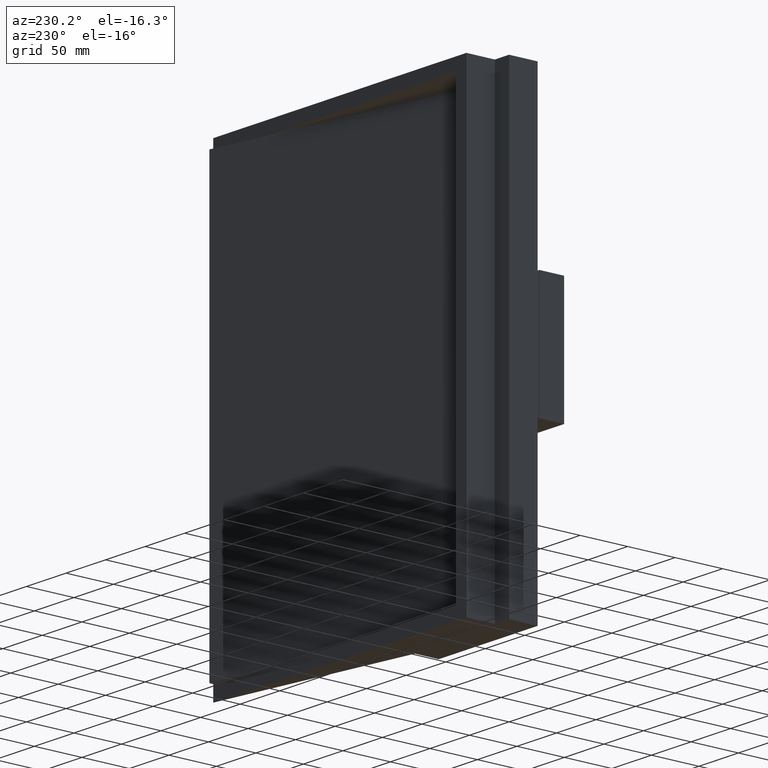
[diagram: clean part render]
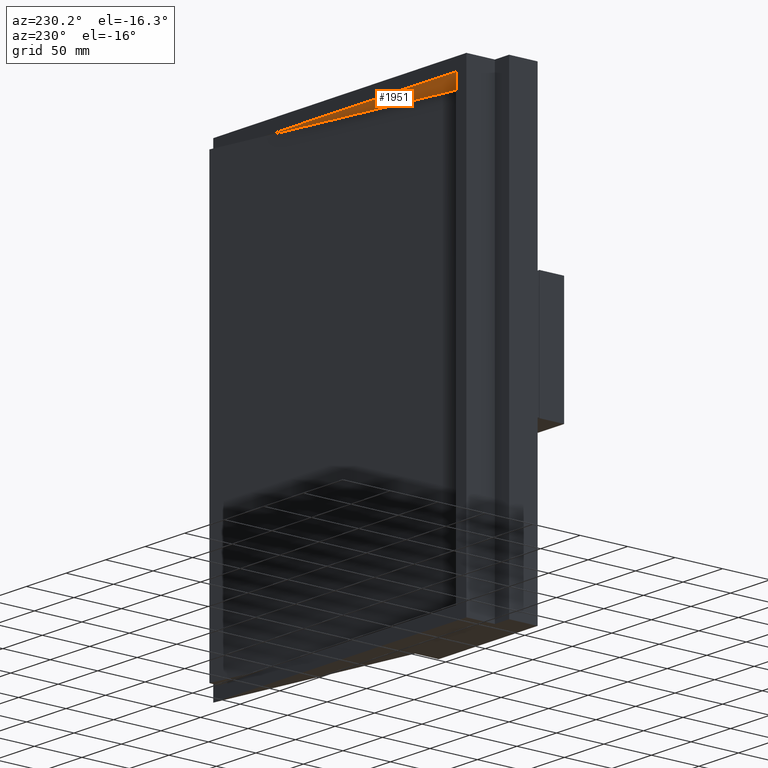
[diagram: same view with one face highlighted and labeled with its STEP entity id]
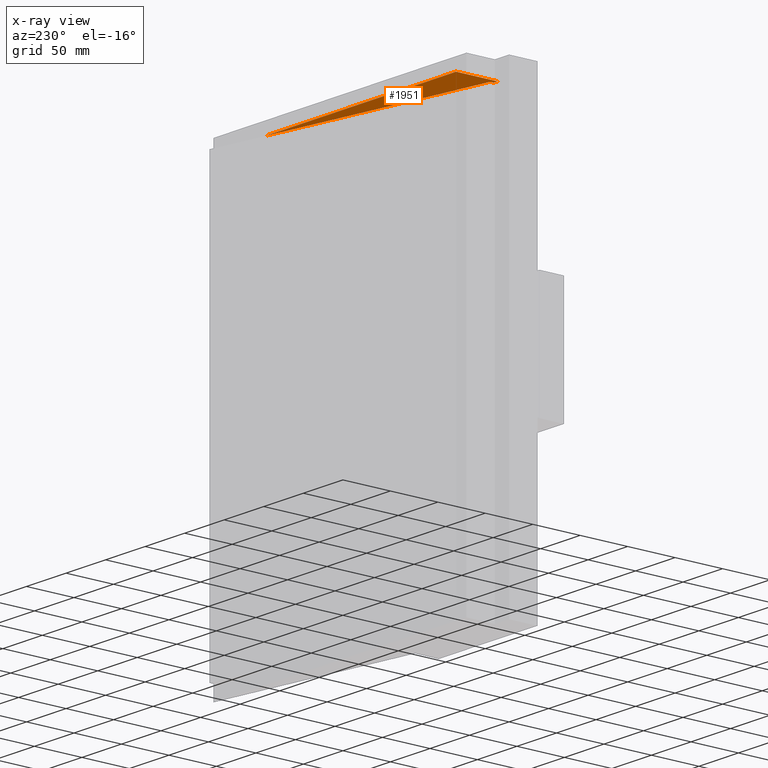
[diagram: x-ray of the same camera — body ghosted, the highlighted face saturated]
A machine part, auxiliary view. The second image highlights one B-rep face of the part: STEP entity #1951.
The next image is the same camera in x-ray: the body ghosted, the highlighted face saturated — about 0% of this face is hidden behind the body in this view.
In plain terms, the highlighted planar face has unit normal (0, 0, 1).
Its self-contained STEP definition (entity closure, byte-faithful):
#38 = LINE ( 'NONE', #1210, #2490 ) ;
#76 = VERTEX_POINT ( 'NONE', #1800 ) ;
#150 = EDGE_CURVE ( 'NONE', #1075, #1186, #2469, .T. ) ;
#203 = ORIENTED_EDGE ( 'NONE', *, *, #664, .T. ) ;
#279 = ORIENTED_EDGE ( 'NONE', *, *, #845, .F. ) ;
#334 = LINE ( 'NONE', #1694, #1218 ) ;
#446 = DIRECTION ( 'NONE',  ( 6.938893903907228400E-016, 1.000000000000000000, 0.0000000000000000000 ) ) ;
#470 = CARTESIAN_POINT ( 'NONE',  ( 226.8836175392034400, 10.00000000000000000, 224.9999999999999700 ) ) ;
#485 = DIRECTION ( 'NONE',  ( 0.0000000000000000000, 0.0000000000000000000, 1.000000000000000000 ) ) ;
#513 = FACE_OUTER_BOUND ( 'NONE', #1392, .T. ) ;
#634 = ORIENTED_EDGE ( 'NONE', *, *, #2206, .F. ) ;
#664 = EDGE_CURVE ( 'NONE', #76, #2910, #38, .T. ) ;
#673 = DIRECTION ( 'NONE',  ( -1.000000000000000000, -0.0000000000000000000, -0.0000000000000000000 ) ) ;
#712 = DIRECTION ( 'NONE',  ( -2.775557561562894300E-016, -1.000000000000000000, 0.0000000000000000000 ) ) ;
#769 = CARTESIAN_POINT ( 'NONE',  ( 167.8836175392035000, 0.0000000000000000000, 224.9999999999999100 ) ) ;
#845 = EDGE_CURVE ( 'NONE', #1186, #2218, #2707, .T. ) ;
#857 = DIRECTION ( 'NONE',  ( -1.000000000000000000, 0.0000000000000000000, 0.0000000000000000000 ) ) ;
#954 = DIRECTION ( 'NONE',  ( 0.9859385576344637000, 0.1671082301075363900, -0.0000000000000000000 ) ) ;
#989 = ORIENTED_EDGE ( 'NONE', *, *, #1494, .F. ) ;
#1075 = VERTEX_POINT ( 'NONE', #1590 ) ;
#1186 = VERTEX_POINT ( 'NONE', #769 ) ;
#1210 = CARTESIAN_POINT ( 'NONE',  ( 130.8911550848954200, -43.49999999999998600, 224.9999999999999700 ) ) ;
#1218 = VECTOR ( 'NONE', #446, 1000.000000000000000 ) ;
#1246 = CARTESIAN_POINT ( 'NONE',  ( -73.11638246079655800, -43.49999999999998600, 224.9999999999999700 ) ) ;
#1299 = AXIS2_PLACEMENT_3D ( 'NONE', #2356, #485, #1911 ) ;
#1392 = EDGE_LOOP ( 'NONE', ( #2156, #634, #203, #989, #279 ) ) ;
#1494 = EDGE_CURVE ( 'NONE', #2218, #2910, #2335, .T. ) ;
#1590 = CARTESIAN_POINT ( 'NONE',  ( -68.11638246079654400, -39.99999999999997900, 224.9999999999999700 ) ) ;
#1694 = CARTESIAN_POINT ( 'NONE',  ( -68.11638246079654400, -39.99999999999984400, 224.9999999999999700 ) ) ;
#1800 = CARTESIAN_POINT ( 'NONE',  ( -68.11638246079654400, -43.49999999999998600, 224.9999999999999700 ) ) ;
#1824 = CARTESIAN_POINT ( 'NONE',  ( -73.11638246079654400, 0.0000000000000000000, 224.9999999999999700 ) ) ;
#1911 = DIRECTION ( 'NONE',  ( 1.000000000000000000, 0.0000000000000000000, -0.0000000000000000000 ) ) ;
#1951 = ADVANCED_FACE ( 'NONE', ( #513 ), #2540, .F. ) ;
#2156 = ORIENTED_EDGE ( 'NONE', *, *, #150, .F. ) ;
#2206 = EDGE_CURVE ( 'NONE', #76, #1075, #334, .T. ) ;
#2218 = VERTEX_POINT ( 'NONE', #1824 ) ;
#2335 = LINE ( 'NONE', #2457, #2596 ) ;
#2356 = CARTESIAN_POINT ( 'NONE',  ( -73.11638246079654400, 9.999999999999955600, 224.9999999999999700 ) ) ;
#2395 = VECTOR ( 'NONE', #857, 1000.000000000000000 ) ;
#2457 = CARTESIAN_POINT ( 'NONE',  ( -73.11638246079654400, 9.999999999999955600, 224.9999999999999700 ) ) ;
#2469 = LINE ( 'NONE', #470, #2620 ) ;
#2490 = VECTOR ( 'NONE', #673, 1000.000000000000000 ) ;
#2540 = PLANE ( 'NONE',  #1299 ) ;
#2596 = VECTOR ( 'NONE', #712, 1000.000000000000000 ) ;
#2620 = VECTOR ( 'NONE', #954, 1000.000000000000000 ) ;
#2662 = CARTESIAN_POINT ( 'NONE',  ( -86.11638246079655800, 0.0000000000000000000, 224.9999999999999700 ) ) ;
#2707 = LINE ( 'NONE', #2662, #2395 ) ;
#2910 = VERTEX_POINT ( 'NONE', #1246 ) ;